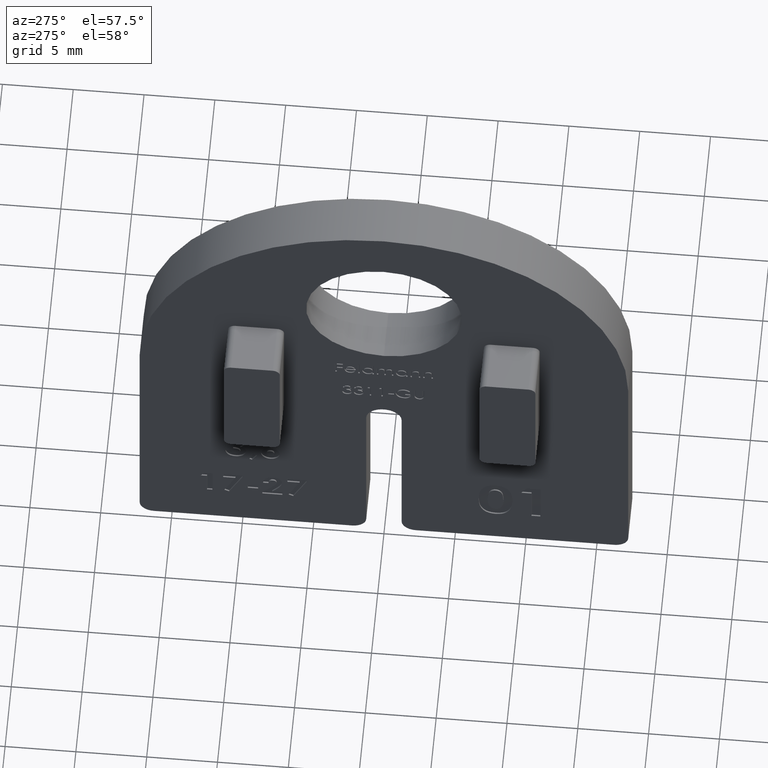
[diagram: clean part render]
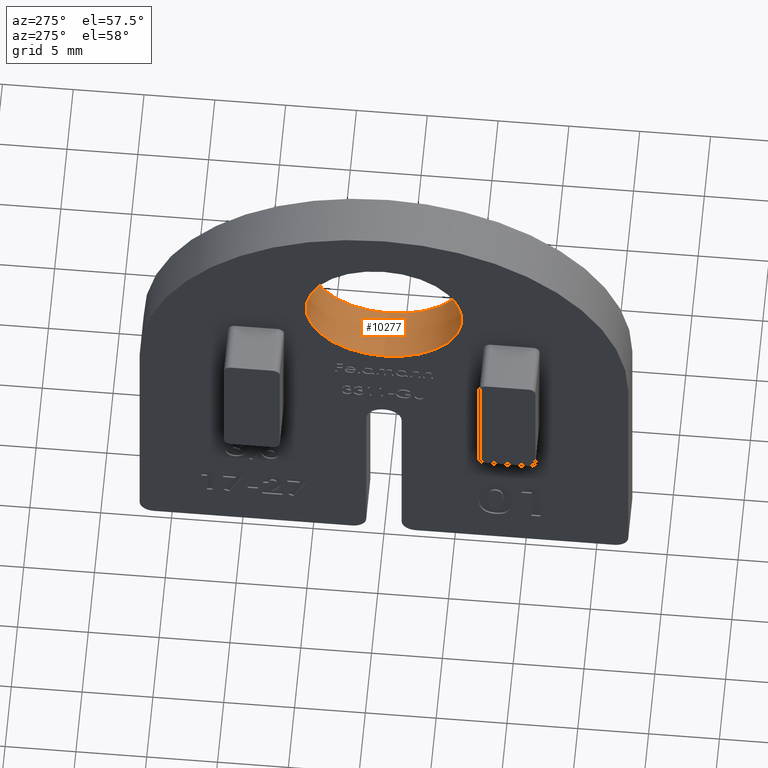
[diagram: same view with one face highlighted and labeled with its STEP entity id]
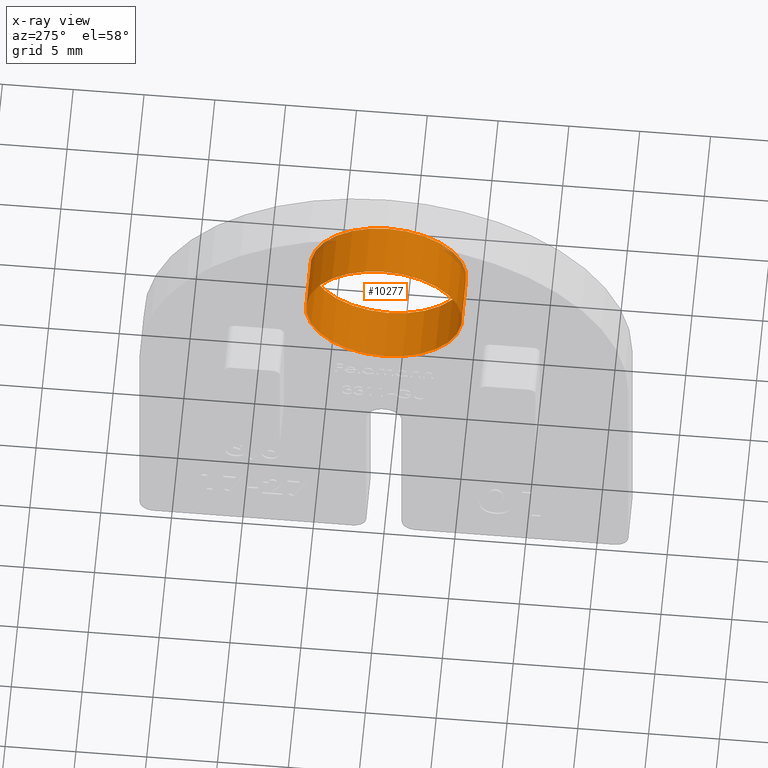
[diagram: x-ray of the same camera — body ghosted, the highlighted face saturated]
A machine part, auxiliary view. The second image highlights one B-rep face of the part: STEP entity #10277.
The next image is the same camera in x-ray: the body ghosted, the highlighted face saturated — about 2% of this face is hidden behind the body in this view.
In plain terms, the highlighted cylindrical surface (bore or boss wall) has radius 5.5 mm, axis along (-1, -0, -0).
Its self-contained STEP definition (entity closure, byte-faithful):
#1279 = CARTESIAN_POINT ( 'NONE',  ( 3.600000000000000100, 0.0000000000000000000, 28.00000000000000000 ) ) ;
#2974 = DIRECTION ( 'NONE',  ( 0.0000000000000000000, 0.0000000000000000000, -1.000000000000000000 ) ) ;
#4122 = VERTEX_POINT ( 'NONE', #9401 ) ;
#4421 = AXIS2_PLACEMENT_3D ( 'NONE', #19313, #5218, #14069 ) ;
#5020 = FACE_OUTER_BOUND ( 'NONE', #6271, .T. ) ;
#5218 = DIRECTION ( 'NONE',  ( 1.000000000000000000, 0.0000000000000000000, 0.0000000000000000000 ) ) ;
#5859 = FACE_OUTER_BOUND ( 'NONE', #9333, .T. ) ;
#6271 = EDGE_LOOP ( 'NONE', ( #16542 ) ) ;
#7220 = ORIENTED_EDGE ( 'NONE', *, *, #16979, .F. ) ;
#9333 = EDGE_LOOP ( 'NONE', ( #7220 ) ) ;
#9401 = CARTESIAN_POINT ( 'NONE',  ( 3.600000000000000100, 0.0000000000000000000, 22.50000000000000700 ) ) ;
#10277 = ADVANCED_FACE ( 'NONE', ( #5020, #5859 ), #17278, .F. ) ;
#11704 = DIRECTION ( 'NONE',  ( 1.000000000000000000, 0.0000000000000000000, 0.0000000000000000000 ) ) ;
#12085 = CIRCLE ( 'NONE', #4421, 5.499999999999994700 ) ;
#12879 = AXIS2_PLACEMENT_3D ( 'NONE', #1279, #11704, #2974 ) ;
#13765 = EDGE_CURVE ( 'NONE', #4122, #4122, #22674, .T. ) ;
#14069 = DIRECTION ( 'NONE',  ( 0.0000000000000000000, 0.0000000000000000000, -1.000000000000000000 ) ) ;
#14847 = DIRECTION ( 'NONE',  ( -1.000000000000000000, -0.0000000000000000000, -0.0000000000000000000 ) ) ;
#14995 = VERTEX_POINT ( 'NONE', #18230 ) ;
#16542 = ORIENTED_EDGE ( 'NONE', *, *, #13765, .T. ) ;
#16979 = EDGE_CURVE ( 'NONE', #14995, #14995, #12085, .T. ) ;
#17278 = CYLINDRICAL_SURFACE ( 'NONE', #17927, 5.499999999999994700 ) ;
#17927 = AXIS2_PLACEMENT_3D ( 'NONE', #18604, #14847, #22152 ) ;
#18230 = CARTESIAN_POINT ( 'NONE',  ( 0.0000000000000000000, 0.0000000000000000000, 22.50000000000000700 ) ) ;
#18604 = CARTESIAN_POINT ( 'NONE',  ( 3.600000000000000100, 0.0000000000000000000, 28.00000000000000000 ) ) ;
#19313 = CARTESIAN_POINT ( 'NONE',  ( 0.0000000000000000000, 0.0000000000000000000, 28.00000000000000000 ) ) ;
#22152 = DIRECTION ( 'NONE',  ( 0.0000000000000000000, 0.0000000000000000000, 1.000000000000000000 ) ) ;
#22674 = CIRCLE ( 'NONE', #12879, 5.499999999999994700 ) ;